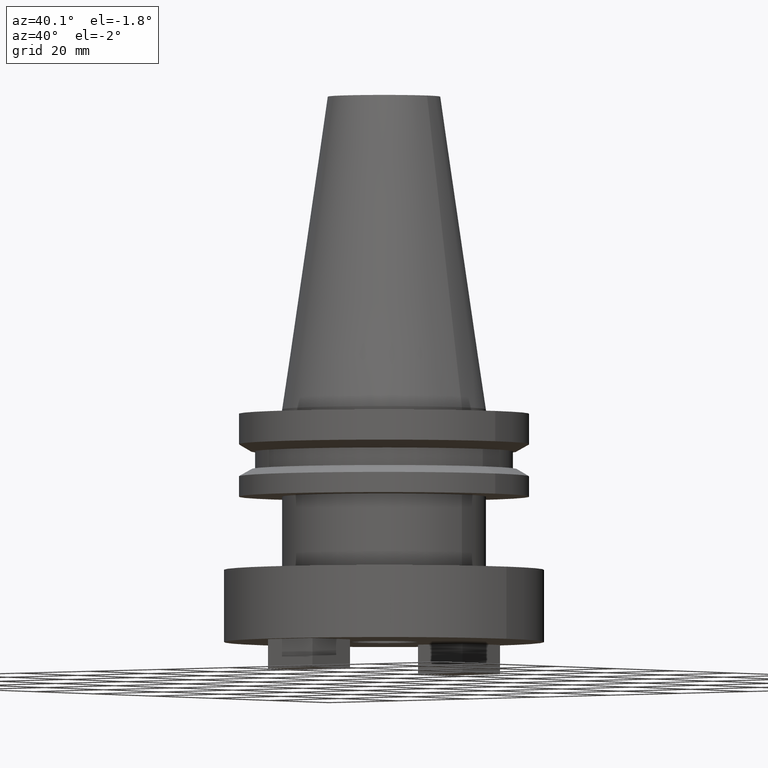
[diagram: clean part render]
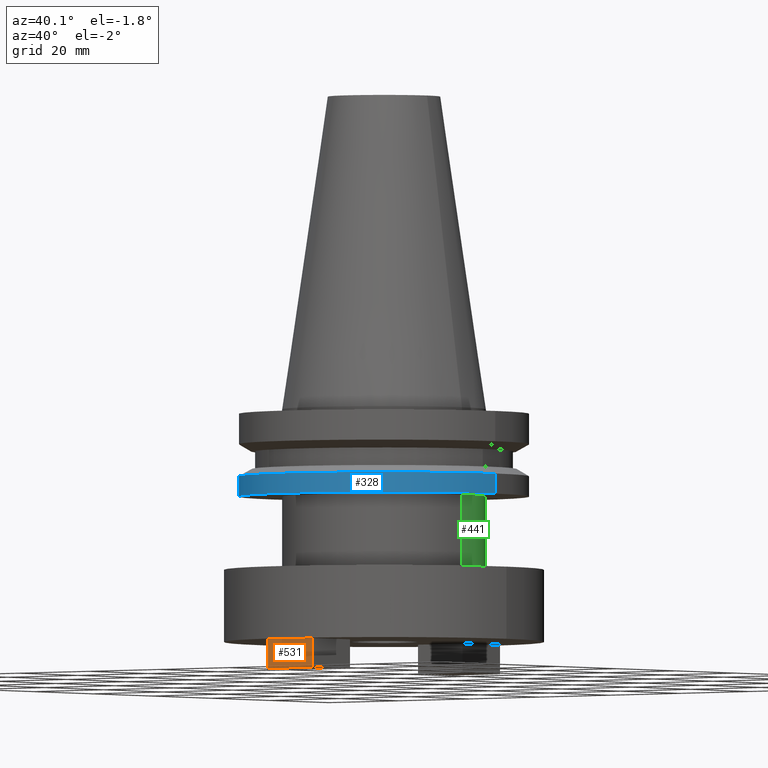
[diagram: same view with three faces highlighted in distinct colors, each labeled with its STEP entity id]
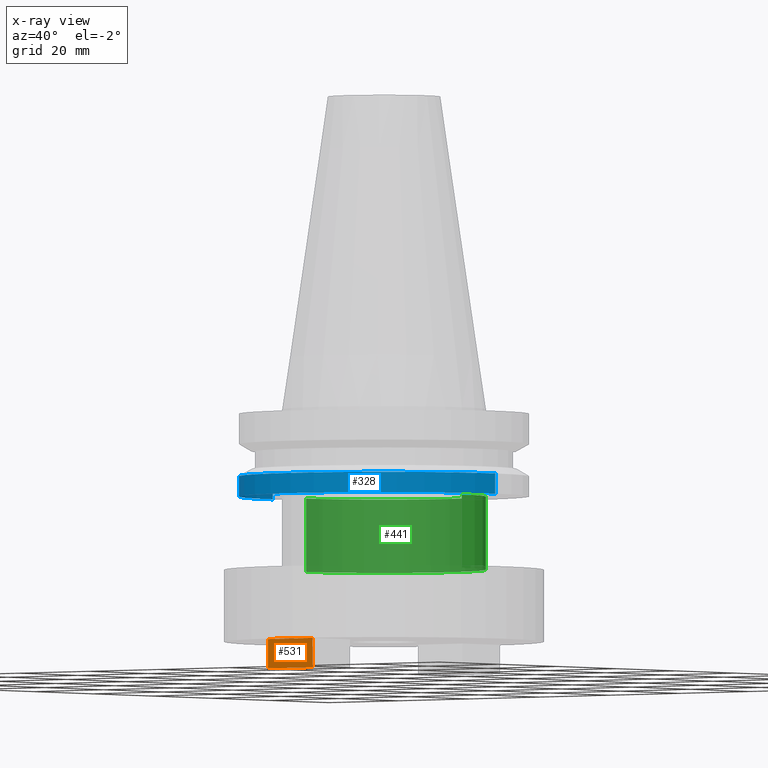
[diagram: x-ray of the same camera — body ghosted, the three highlighted faces saturated]
A machine part, auxiliary view with three faces highlighted in distinct colors.
The next image is the same camera in x-ray (body ghosted, the three faces saturated) — at least one of them is partly hidden behind the body in this view.
Their STEP definitions:

[orange] entity #531 — the highlighted planar face has unit normal (0, 1, 0).
#46 = EDGE_CURVE ( 'NONE', #741, #930, #1025, .T. ) ;
#56 = CARTESIAN_POINT ( 'NONE',  ( 6.349999999999997868, -31.75000000000000000, -57.20000000000000284 ) ) ;
#94 = ORIENTED_EDGE ( 'NONE', *, *, #213, .T. ) ;
#97 = DIRECTION ( 'NONE',  ( -1.000000000000000000, 0.000000000000000000, 0.000000000000000000 ) ) ;
#99 = VERTEX_POINT ( 'NONE', #525 ) ;
#100 = DIRECTION ( 'NONE',  ( 0.000000000000000000, -0.000000000000000000, 1.000000000000000000 ) ) ;
#175 = VECTOR ( 'NONE', #315, 1000.000000000000000 ) ;
#200 = DIRECTION ( 'NONE',  ( -1.000000000000000000, 0.000000000000000000, 0.000000000000000000 ) ) ;
#209 = LINE ( 'NONE', #56, #707 ) ;
#213 = EDGE_CURVE ( 'NONE', #99, #741, #209, .T. ) ;
#263 = LINE ( 'NONE', #516, #316 ) ;
#276 = CARTESIAN_POINT ( 'NONE',  ( 6.349999999999997868, -31.75000000000000000, -50.79999999999999716 ) ) ;
#304 = CARTESIAN_POINT ( 'NONE',  ( -6.350000000000003197, -31.75000000000000000, -50.79999999999999716 ) ) ;
#315 = DIRECTION ( 'NONE',  ( -0.000000000000000000, -0.000000000000000000, 1.000000000000000000 ) ) ;
#316 = VECTOR ( 'NONE', #97, 1000.000000000000000 ) ;
#360 = VECTOR ( 'NONE', #200, 1000.000000000000000 ) ;
#388 = ORIENTED_EDGE ( 'NONE', *, *, #578, .F. ) ;
#415 = CARTESIAN_POINT ( 'NONE',  ( 6.349999999999997868, -31.75000000000000000, -57.20000000000000284 ) ) ;
#458 = EDGE_LOOP ( 'NONE', ( #526, #388, #682, #94 ) ) ;
#504 = LINE ( 'NONE', #839, #175 ) ;
#516 = CARTESIAN_POINT ( 'NONE',  ( 6.349999999999997868, -31.75000000000000000, -57.20000000000000284 ) ) ;
#525 = CARTESIAN_POINT ( 'NONE',  ( 6.349999999999997868, -31.75000000000000000, -57.20000000000000284 ) ) ;
#526 = ORIENTED_EDGE ( 'NONE', *, *, #46, .T. ) ;
#531 = ADVANCED_FACE ( 'NONE', ( #605 ), #689, .F. ) ;
#566 = DIRECTION ( 'NONE',  ( -0.000000000000000000, -0.000000000000000000, 1.000000000000000000 ) ) ;
#578 = EDGE_CURVE ( 'NONE', #621, #930, #504, .T. ) ;
#605 = FACE_OUTER_BOUND ( 'NONE', #458, .T. ) ;
#621 = VERTEX_POINT ( 'NONE', #1012 ) ;
#682 = ORIENTED_EDGE ( 'NONE', *, *, #1076, .F. ) ;
#689 = PLANE ( 'NONE',  #825 ) ;
#695 = CARTESIAN_POINT ( 'NONE',  ( 6.349999999999997868, -31.75000000000000711, -50.79999999999999716 ) ) ;
#707 = VECTOR ( 'NONE', #566, 1000.000000000000000 ) ;
#741 = VERTEX_POINT ( 'NONE', #695 ) ;
#825 = AXIS2_PLACEMENT_3D ( 'NONE', #415, #1077, #100 ) ;
#839 = CARTESIAN_POINT ( 'NONE',  ( -6.350000000000003197, -31.75000000000000000, -57.20000000000000284 ) ) ;
#930 = VERTEX_POINT ( 'NONE', #304 ) ;
#1012 = CARTESIAN_POINT ( 'NONE',  ( -6.350000000000003197, -31.75000000000000000, -57.20000000000000284 ) ) ;
#1025 = LINE ( 'NONE', #276, #360 ) ;
#1076 = EDGE_CURVE ( 'NONE', #99, #621, #263, .T. ) ;
#1077 = DIRECTION ( 'NONE',  ( 0.000000000000000000, 1.000000000000000000, 0.000000000000000000 ) ) ;

[blue] entity #328 — the highlighted cylindrical surface (partial cylindrical patch) has radius 31.75 mm, axis along (-0, -0, 1).
#5 = ORIENTED_EDGE ( 'NONE', *, *, #616, .F. ) ;
#25 = CARTESIAN_POINT ( 'NONE',  ( 31.75000000000000000, 0.000000000000000000, -14.65472339340266572 ) ) ;
#52 = DIRECTION ( 'NONE',  ( -0.000000000000000000, -0.000000000000000000, 1.000000000000000000 ) ) ;
#125 = ORIENTED_EDGE ( 'NONE', *, *, #821, .T. ) ;
#140 = AXIS2_PLACEMENT_3D ( 'NONE', #352, #701, #959 ) ;
#158 = CARTESIAN_POINT ( 'NONE',  ( 0.000000000000000000, 0.000000000000000000, -19.04999999999999716 ) ) ;
#218 = EDGE_LOOP ( 'NONE', ( #5, #879, #125, #447 ) ) ;
#235 = LINE ( 'NONE', #255, #311 ) ;
#255 = CARTESIAN_POINT ( 'NONE',  ( -31.75000000000000000, 3.888253587292846476E-15, 68.25000000000000000 ) ) ;
#277 = VECTOR ( 'NONE', #52, 1000.000000000000000 ) ;
#299 = VERTEX_POINT ( 'NONE', #1004 ) ;
#311 = VECTOR ( 'NONE', #684, 1000.000000000000000 ) ;
#328 = ADVANCED_FACE ( 'NONE', ( #672 ), #833, .T. ) ;
#352 = CARTESIAN_POINT ( 'NONE',  ( 0.000000000000000000, 0.000000000000000000, -14.65472339340266572 ) ) ;
#369 = AXIS2_PLACEMENT_3D ( 'NONE', #158, #595, #601 ) ;
#370 = VERTEX_POINT ( 'NONE', #759 ) ;
#432 = CARTESIAN_POINT ( 'NONE',  ( -31.75000000000000000, 3.888253587292846476E-15, -14.65472339340266572 ) ) ;
#447 = ORIENTED_EDGE ( 'NONE', *, *, #809, .F. ) ;
#495 = CARTESIAN_POINT ( 'NONE',  ( 0.000000000000000000, 0.000000000000000000, 68.25000000000000000 ) ) ;
#548 = CIRCLE ( 'NONE', #140, 31.75000000000000000 ) ;
#569 = EDGE_CURVE ( 'NONE', #370, #299, #844, .T. ) ;
#595 = DIRECTION ( 'NONE',  ( -0.000000000000000000, -0.000000000000000000, 1.000000000000000000 ) ) ;
#601 = DIRECTION ( 'NONE',  ( 1.000000000000000000, 0.000000000000000000, 0.000000000000000000 ) ) ;
#616 = EDGE_CURVE ( 'NONE', #370, #688, #235, .T. ) ;
#672 = FACE_OUTER_BOUND ( 'NONE', #218, .T. ) ;
#684 = DIRECTION ( 'NONE',  ( -0.000000000000000000, -0.000000000000000000, 1.000000000000000000 ) ) ;
#688 = VERTEX_POINT ( 'NONE', #432 ) ;
#701 = DIRECTION ( 'NONE',  ( -0.000000000000000000, -0.000000000000000000, 1.000000000000000000 ) ) ;
#708 = CARTESIAN_POINT ( 'NONE',  ( 31.75000000000000000, 0.000000000000000000, 68.25000000000000000 ) ) ;
#759 = CARTESIAN_POINT ( 'NONE',  ( -31.74999999999999289, 3.888253587292845687E-15, -19.04999999999999716 ) ) ;
#809 = EDGE_CURVE ( 'NONE', #688, #842, #548, .T. ) ;
#821 = EDGE_CURVE ( 'NONE', #299, #842, #856, .T. ) ;
#833 = CYLINDRICAL_SURFACE ( 'NONE', #1047, 31.75000000000000000 ) ;
#840 = DIRECTION ( 'NONE',  ( -0.000000000000000000, -0.000000000000000000, 1.000000000000000000 ) ) ;
#842 = VERTEX_POINT ( 'NONE', #25 ) ;
#844 = CIRCLE ( 'NONE', #369, 31.74999999999999289 ) ;
#856 = LINE ( 'NONE', #708, #277 ) ;
#879 = ORIENTED_EDGE ( 'NONE', *, *, #569, .T. ) ;
#959 = DIRECTION ( 'NONE',  ( 1.000000000000000000, 0.000000000000000000, 0.000000000000000000 ) ) ;
#1004 = CARTESIAN_POINT ( 'NONE',  ( 31.74999999999999289, 0.000000000000000000, -19.04999999999999716 ) ) ;
#1047 = AXIS2_PLACEMENT_3D ( 'NONE', #495, #840, #1072 ) ;
#1072 = DIRECTION ( 'NONE',  ( 1.000000000000000000, 0.000000000000000000, 0.000000000000000000 ) ) ;

[green] entity #441 — the highlighted cylindrical surface (partial cylindrical patch) has radius 22.225 mm, axis along (-0, -0, 1).
#44 = AXIS2_PLACEMENT_3D ( 'NONE', #920, #765, #421 ) ;
#54 = CARTESIAN_POINT ( 'NONE',  ( 0.000000000000000000, 0.000000000000000000, 68.25000000000000000 ) ) ;
#69 = CARTESIAN_POINT ( 'NONE',  ( 0.000000000000000000, 0.000000000000000000, -35.04999999999999716 ) ) ;
#114 = DIRECTION ( 'NONE',  ( -0.000000000000000000, -0.000000000000000000, 1.000000000000000000 ) ) ;
#170 = ORIENTED_EDGE ( 'NONE', *, *, #969, .F. ) ;
#176 = VERTEX_POINT ( 'NONE', #489 ) ;
#192 = VERTEX_POINT ( 'NONE', #817 ) ;
#198 = LINE ( 'NONE', #261, #457 ) ;
#206 = ORIENTED_EDGE ( 'NONE', *, *, #344, .T. ) ;
#217 = AXIS2_PLACEMENT_3D ( 'NONE', #54, #1051, #493 ) ;
#228 = CYLINDRICAL_SURFACE ( 'NONE', #217, 22.22500000000000142 ) ;
#246 = LINE ( 'NONE', #918, #412 ) ;
#261 = CARTESIAN_POINT ( 'NONE',  ( 22.22500000000000142, 0.000000000000000000, 68.25000000000000000 ) ) ;
#291 = VERTEX_POINT ( 'NONE', #585 ) ;
#312 = DIRECTION ( 'NONE',  ( -0.000000000000000000, -0.000000000000000000, 1.000000000000000000 ) ) ;
#344 = EDGE_CURVE ( 'NONE', #192, #779, #246, .T. ) ;
#399 = ORIENTED_EDGE ( 'NONE', *, *, #1068, .F. ) ;
#400 = FACE_OUTER_BOUND ( 'NONE', #709, .T. ) ;
#403 = DIRECTION ( 'NONE',  ( 0.000000000000000000, 0.000000000000000000, -1.000000000000000000 ) ) ;
#412 = VECTOR ( 'NONE', #312, 1000.000000000000000 ) ;
#421 = DIRECTION ( 'NONE',  ( 1.000000000000000000, 0.000000000000000000, 0.000000000000000000 ) ) ;
#441 = ADVANCED_FACE ( 'NONE', ( #400 ), #228, .T. ) ;
#445 = AXIS2_PLACEMENT_3D ( 'NONE', #69, #403, #1080 ) ;
#457 = VECTOR ( 'NONE', #114, 1000.000000000000000 ) ;
#465 = ORIENTED_EDGE ( 'NONE', *, *, #725, .F. ) ;
#489 = CARTESIAN_POINT ( 'NONE',  ( 22.22500000000000142, 0.000000000000000000, -35.04999999999999716 ) ) ;
#493 = DIRECTION ( 'NONE',  ( 1.000000000000000000, 0.000000000000000000, 0.000000000000000000 ) ) ;
#585 = CARTESIAN_POINT ( 'NONE',  ( 22.22500000000000142, 0.000000000000000000, -19.04999999999999716 ) ) ;
#627 = CIRCLE ( 'NONE', #44, 22.22500000000000142 ) ;
#685 = CIRCLE ( 'NONE', #445, 22.22500000000000142 ) ;
#709 = EDGE_LOOP ( 'NONE', ( #170, #206, #399, #465 ) ) ;
#725 = EDGE_CURVE ( 'NONE', #176, #291, #198, .T. ) ;
#765 = DIRECTION ( 'NONE',  ( -0.000000000000000000, -0.000000000000000000, 1.000000000000000000 ) ) ;
#779 = VERTEX_POINT ( 'NONE', #1023 ) ;
#817 = CARTESIAN_POINT ( 'NONE',  ( -22.22500000000000142, 2.721777511104992849E-15, -35.04999999999999716 ) ) ;
#918 = CARTESIAN_POINT ( 'NONE',  ( -22.22500000000000142, 2.721777511104992849E-15, 68.25000000000000000 ) ) ;
#920 = CARTESIAN_POINT ( 'NONE',  ( 0.000000000000000000, 0.000000000000000000, -19.04999999999999716 ) ) ;
#969 = EDGE_CURVE ( 'NONE', #192, #176, #685, .T. ) ;
#1023 = CARTESIAN_POINT ( 'NONE',  ( -22.22500000000000142, 2.721777511104992849E-15, -19.04999999999999716 ) ) ;
#1051 = DIRECTION ( 'NONE',  ( -0.000000000000000000, -0.000000000000000000, 1.000000000000000000 ) ) ;
#1068 = EDGE_CURVE ( 'NONE', #291, #779, #627, .T. ) ;
#1080 = DIRECTION ( 'NONE',  ( -1.000000000000000000, 0.000000000000000000, 0.000000000000000000 ) ) ;